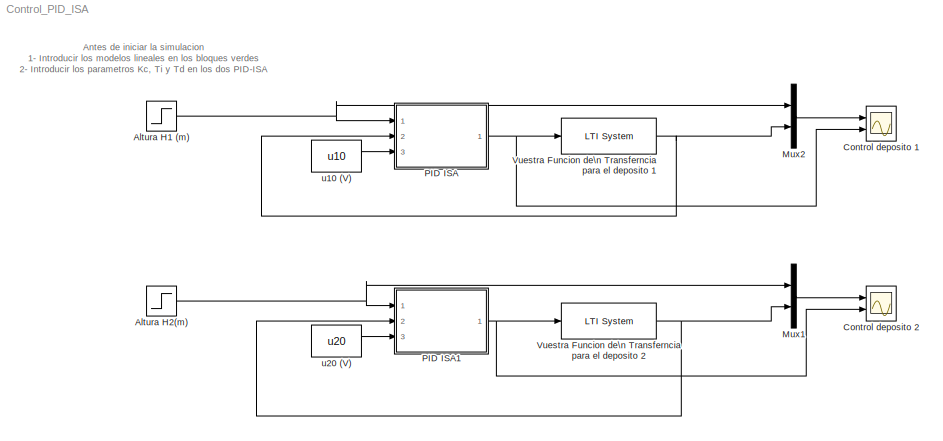
MODEL Control_PID_ISA
KIND model
BLOCK [Step] Altura H1 (m)
  After = 5
  SID = 42
  SampleTime = 0.06
BLOCK [Step] Altura H2(m)
  After = 5
  SID = 43
  SampleTime = 0.06
BLOCK [Scope] Control deposito 1
  DataFormat = StructureWithTime
  Floating = off
  LimitDataPoints = off
  MaxDataPoints = 100000
  NumInputPorts = 2
  Ports = [2]
  SID = 2
  SampleTime = 0
  SaveName = ScopeData1
  TimeRange = 30
  YMax = 20~14
  YMin = -15~0
  ZoomMode = xonly
BLOCK [Scope] Control deposito 2
  DataFormat = StructureWithTime
  Floating = off
  LimitDataPoints = off
  MaxDataPoints = 100000
  NumInputPorts = 2
  Ports = [2]
  SID = 3
  SampleTime = 0
  SaveName = ScopeData2
  TimeRange = 30
  YMax = 20~14
  YMin = -15~0
  ZoomMode = xonly
BLOCK [Mux] Mux1
  DisplayOption = bar
  Inputs = 2
  Ports = [2, 1]
  SID = 4
BLOCK [Mux] Mux2
  DisplayOption = bar
  Inputs = 2
  Ports = [2, 1]
  SID = 5
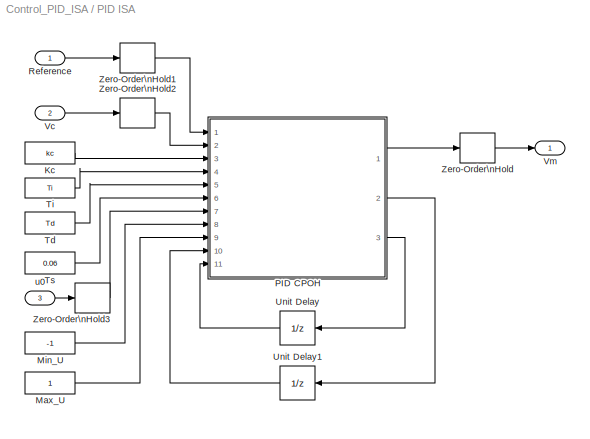
BLOCK [SubSystem] PID ISA
  FunctionWithSeparateData = off
  MaskCallbackString = ||
  MaskEnableString = on,on,on
  MaskHideContents = off
  MaskIconFrame = on
  MaskIconOpaque = on
  MaskIconRotate = none
  MaskIconUnits = autoscale
  MaskPortRotate = default
  MaskPromptString = kc|Ti|Td
  MaskStyleString = edit,edit,edit
  MaskToolTipString = on,on,on
  MaskTunableValueString = on,on,on
  MaskValueString = Kc|Ti|Td
  MaskVariables = kc=@1;Ti=@2;Td=@3;
  MaskVisibilityString = on,on,on
  MinAlgLoopOccurrences = off
  Opaque = off
  Ports = [3, 1]
  PropExecContextOutsideSubsystem = off
  RTWSystemCode = Auto
  RequestExecContextInheritance = off
  SID = 6
BLOCK [Constant] PID ISA/Kc
  SID = 10
  Value = kc
BLOCK [Constant] PID ISA/Max_U
  SID = 11
BLOCK [Constant] PID ISA/Min_U
  SID = 12
  Value = -1
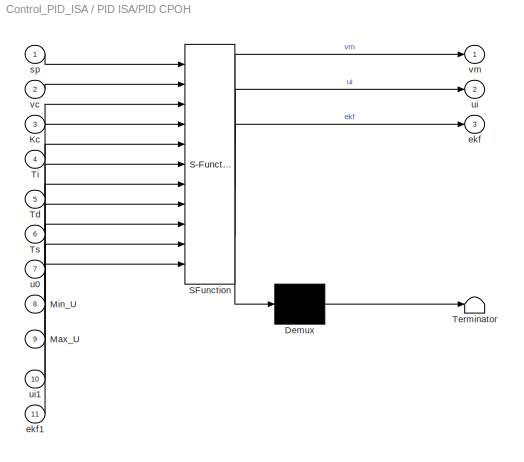
BLOCK [SubSystem] PID ISA/PID CPOH
  ErrorFcn = Stateflow.Translate.translate
  FunctionWithSeparateData = off
  MaskDescription = Embedded MATLAB block
  MaskDisplay = bgColor = Simulink.Root.ColorString2Rgb(get_param(gcbh, 'BackgroundColor')); image(imread('private/eml_membrane_16.png','png','BackgroundColor',bgColor(1:3)),'center'); disp([10 10 'fcn']);
  MaskHideContents = off
  MaskIconFrame = on
  MaskIconOpaque = off
  MaskIconRotate = none
  MaskIconUnits = normalized
  MaskPortRotate = default
  MaskSelfModifiable = on
  MaskType = Stateflow
  MinAlgLoopOccurrences = off
  Opaque = off
  PermitHierarchicalResolution = ExplicitOnly
  Ports = [11, 3]
  PropExecContextOutsideSubsystem = off
  RTWSystemCode = Auto
  RequestExecContextInheritance = off
  SFBlockType = MATLAB Function
  SID = 13
  TreatAsAtomicUnit = on
BLOCK [Demux] PID ISA/PID CPOH/ Demux 
  Outputs = 1
  Ports = [1, 1]
  SID = 13::19
BLOCK [S-Function] PID ISA/PID CPOH/ SFunction 
  EnableBusSupport = off
  FunctionName = sf_sfun
  PortCounts = [11 4]
  Ports = [11, 4]
  SID = 13::18
  Tag = Stateflow S-Function Control_PID_ISA 2
BLOCK [Terminator] PID ISA/PID CPOH/ Terminator 
  SID = 13::21
BLOCK [Inport] PID ISA/PID CPOH/Kc
  IconDisplay = Port number
  Port = 3
  SID = 13::3
BLOCK [Inport] PID ISA/PID CPOH/Max_U
  IconDisplay = Port number
  Port = 9
  SID = 13::9
BLOCK [Inport] PID ISA/PID CPOH/Min_U
  IconDisplay = Port number
  Port = 8
  SID = 13::8
BLOCK [Inport] PID ISA/PID CPOH/Td
  IconDisplay = Port number
  Port = 5
  SID = 13::5
BLOCK [Inport] PID ISA/PID CPOH/Ti
  IconDisplay = Port number
  Port = 4
  SID = 13::4
BLOCK [Inport] PID ISA/PID CPOH/Ts
  IconDisplay = Port number
  Port = 6
  SID = 13::6
BLOCK [Outport] PID ISA/PID CPOH/ekf
  IconDisplay = Port number
  Port = 3
  SID = 13::17
BLOCK [Inport] PID ISA/PID CPOH/ekf1
  IconDisplay = Port number
  Port = 11
  SID = 13::11
BLOCK [Inport] PID ISA/PID CPOH/sp
  IconDisplay = Port number
  SID = 13::1
BLOCK [Inport] PID ISA/PID CPOH/u0
  IconDisplay = Port number
  Port = 7
  SID = 13::7
BLOCK [Outport] PID ISA/PID CPOH/ui
  IconDisplay = Port number
  Port = 2
  SID = 13::16
BLOCK [Inport] PID ISA/PID CPOH/ui1
  IconDisplay = Port number
  Port = 10
  SID = 13::10
BLOCK [Inport] PID ISA/PID CPOH/vc
  IconDisplay = Port number
  Port = 2
  SID = 13::2
BLOCK [Outport] PID ISA/PID CPOH/vm
  IconDisplay = Port number
  SID = 13::15
BLOCK [Inport] PID ISA/Reference
  IconDisplay = Port number
  SID = 7
BLOCK [Constant] PID ISA/Td
  SID = 14
  Value = Td
BLOCK [Constant] PID ISA/Ti
  SID = 15
  Value = Ti
BLOCK [Constant] PID ISA/Ts
  SID = 16
  Value = 0.06
BLOCK [UnitDelay] PID ISA/Unit Delay
  SID = 17
  SampleTime = 0.04
BLOCK [UnitDelay] PID ISA/Unit Delay1
  SID = 18
  SampleTime = 0.04
BLOCK [Inport] PID ISA/Vc
  IconDisplay = Port number
  Port = 2
  SID = 8
BLOCK [Outport] PID ISA/Vm
  IconDisplay = Port number
  SID = 23
BLOCK [ZeroOrderHold] PID ISA/Zero-Order\nHold
  SID = 19
  SampleTime = 0.04
BLOCK [ZeroOrderHold] PID ISA/Zero-Order\nHold1
  SID = 20
  SampleTime = 0.04
BLOCK [ZeroOrderHold] PID ISA/Zero-Order\nHold2
  SID = 21
  SampleTime = 0.04
BLOCK [ZeroOrderHold] PID ISA/Zero-Order\nHold3
  SID = 22
  SampleTime = 0.04
BLOCK [Inport] PID ISA/u0
  IconDisplay = Port number
  Port = 3
  SID = 9
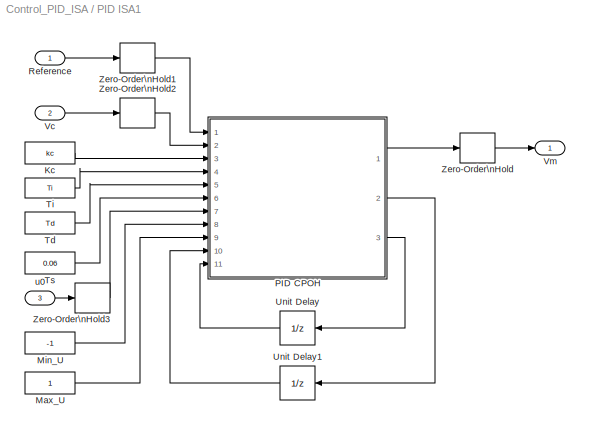
BLOCK [SubSystem] PID ISA1
  FunctionWithSeparateData = off
  MaskCallbackString = ||
  MaskEnableString = on,on,on
  MaskHideContents = off
  MaskIconFrame = on
  MaskIconOpaque = on
  MaskIconRotate = none
  MaskIconUnits = autoscale
  MaskPortRotate = default
  MaskPromptString = kc|Ti|Td
  MaskStyleString = edit,edit,edit
  MaskToolTipString = on,on,on
  MaskTunableValueString = on,on,on
  MaskValueString = Kc|Ti|Td
  MaskVariables = kc=@1;Ti=@2;Td=@3;
  MaskVisibilityString = on,on,on
  MinAlgLoopOccurrences = off
  Opaque = off
  Ports = [3, 1]
  PropExecContextOutsideSubsystem = off
  RTWSystemCode = Auto
  RequestExecContextInheritance = off
  SID = 24
BLOCK [Constant] PID ISA1/Kc
  SID = 28
  Value = kc
BLOCK [Constant] PID ISA1/Max_U
  SID = 29
BLOCK [Constant] PID ISA1/Min_U
  SID = 30
  Value = -1
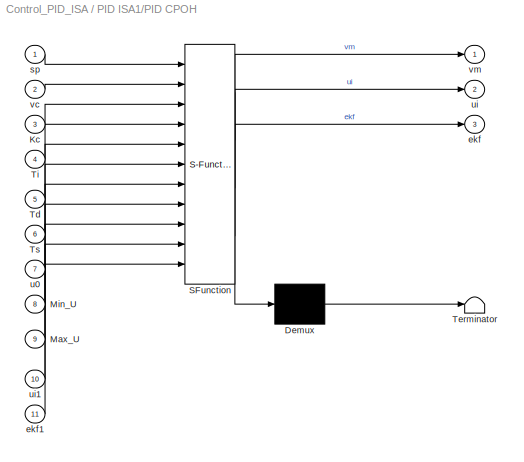
BLOCK [SubSystem] PID ISA1/PID CPOH
  ErrorFcn = Stateflow.Translate.translate
  FunctionWithSeparateData = off
  MaskDescription = Embedded MATLAB block
  MaskDisplay = bgColor = Simulink.Root.ColorString2Rgb(get_param(gcbh, 'BackgroundColor')); image(imread('private/eml_membrane_16.png','png','BackgroundColor',bgColor(1:3)),'center'); disp([10 10 'fcn']);
  MaskHideContents = off
  MaskIconFrame = on
  MaskIconOpaque = off
  MaskIconRotate = none
  MaskIconUnits = normalized
  MaskPortRotate = default
  MaskSelfModifiable = on
  MaskType = Stateflow
  MinAlgLoopOccurrences = off
  Opaque = off
  PermitHierarchicalResolution = ExplicitOnly
  Ports = [11, 3]
  PropExecContextOutsideSubsystem = off
  RTWSystemCode = Auto
  RequestExecContextInheritance = off
  SFBlockType = MATLAB Function
  SID = 31
  TreatAsAtomicUnit = on
BLOCK [Demux] PID ISA1/PID CPOH/ Demux 
  Outputs = 1
  Ports = [1, 1]
  SID = 31::19
BLOCK [S-Function] PID ISA1/PID CPOH/ SFunction 
  EnableBusSupport = off
  FunctionName = sf_sfun
  PortCounts = [11 4]
  Ports = [11, 4]
  SID = 31::18
  Tag = Stateflow S-Function Control_PID_ISA 1
BLOCK [Terminator] PID ISA1/PID CPOH/ Terminator 
  SID = 31::21
BLOCK [Inport] PID ISA1/PID CPOH/Kc
  IconDisplay = Port number
  Port = 3
  SID = 31::3
BLOCK [Inport] PID ISA1/PID CPOH/Max_U
  IconDisplay = Port number
  Port = 9
  SID = 31::9
BLOCK [Inport] PID ISA1/PID CPOH/Min_U
  IconDisplay = Port number
  Port = 8
  SID = 31::8
BLOCK [Inport] PID ISA1/PID CPOH/Td
  IconDisplay = Port number
  Port = 5
  SID = 31::5
BLOCK [Inport] PID ISA1/PID CPOH/Ti
  IconDisplay = Port number
  Port = 4
  SID = 31::4
BLOCK [Inport] PID ISA1/PID CPOH/Ts
  IconDisplay = Port number
  Port = 6
  SID = 31::6
BLOCK [Outport] PID ISA1/PID CPOH/ekf
  IconDisplay = Port number
  Port = 3
  SID = 31::17
BLOCK [Inport] PID ISA1/PID CPOH/ekf1
  IconDisplay = Port number
  Port = 11
  SID = 31::11
BLOCK [Inport] PID ISA1/PID CPOH/sp
  IconDisplay = Port number
  SID = 31::1
BLOCK [Inport] PID ISA1/PID CPOH/u0
  IconDisplay = Port number
  Port = 7
  SID = 31::7
BLOCK [Outport] PID ISA1/PID CPOH/ui
  IconDisplay = Port number
  Port = 2
  SID = 31::16
BLOCK [Inport] PID ISA1/PID CPOH/ui1
  IconDisplay = Port number
  Port = 10
  SID = 31::10
BLOCK [Inport] PID ISA1/PID CPOH/vc
  IconDisplay = Port number
  Port = 2
  SID = 31::2
BLOCK [Outport] PID ISA1/PID CPOH/vm
  IconDisplay = Port number
  SID = 31::15
BLOCK [Inport] PID ISA1/Reference
  IconDisplay = Port number
  SID = 25
BLOCK [Constant] PID ISA1/Td
  SID = 32
  Value = Td
BLOCK [Constant] PID ISA1/Ti
  SID = 33
  Value = Ti
BLOCK [Constant] PID ISA1/Ts
  SID = 34
  Value = 0.06
BLOCK [UnitDelay] PID ISA1/Unit Delay
  SID = 35
  SampleTime = 0.04
BLOCK [UnitDelay] PID ISA1/Unit Delay1
  SID = 36
  SampleTime = 0.04
BLOCK [Inport] PID ISA1/Vc
  IconDisplay = Port number
  Port = 2
  SID = 26
BLOCK [Outport] PID ISA1/Vm
  IconDisplay = Port number
  SID = 41
BLOCK [ZeroOrderHold] PID ISA1/Zero-Order\nHold
  SID = 37
  SampleTime = 0.04
BLOCK [ZeroOrderHold] PID ISA1/Zero-Order\nHold1
  SID = 38
  SampleTime = 0.04
BLOCK [ZeroOrderHold] PID ISA1/Zero-Order\nHold2
  SID = 39
  SampleTime = 0.04
BLOCK [ZeroOrderHold] PID ISA1/Zero-Order\nHold3
  SID = 40
  SampleTime = 0.04
BLOCK [Inport] PID ISA1/u0
  IconDisplay = Port number
  Port = 3
  SID = 27
BLOCK [Reference] Vuestra Funcion de\n Transferncia para el deposito 1  REF=cstblocks/LTI System
  IC = []
  Ports = [1, 1]
  SID = 44
  SourceBlock = cstblocks/LTI System
  SourceType = LTI Block
  sys = Gx
BLOCK [Reference] Vuestra Funcion de\n Transferncia para el deposito 2  REF=cstblocks/LTI System
  IC = []
  Ports = [1, 1]
  SID = 45
  SourceBlock = cstblocks/LTI System
  SourceType = LTI Block
  sys = Gy
BLOCK [Constant] u10 (V)   
  SID = 47
  Value = u10
BLOCK [Constant] u20 (V)
  SID = 1
  Value = u20
ANNOTATION (root): Antes de iniciar la simulacion\n1- Introducir los modelos lineales en los bloques verdes\n2- Introducir los parametros Kc, Ti y Td en los dos PID-ISA
NET Altura H1 (m):1 -> Mux2:1, PID ISA:1
NET Altura H2(m):1 -> Mux1:1, PID ISA1:1
LINE Mux1:1 -> Control deposito 2:1
LINE Mux2:1 -> Control deposito 1:1
LINE PID ISA/Kc:1 -> PID ISA/PID CPOH:3
LINE PID ISA/Max_U:1 -> PID ISA/PID CPOH:9
LINE PID ISA/Min_U:1 -> PID ISA/PID CPOH:8
LINE PID ISA/PID CPOH/ Demux :1 -> PID ISA/PID CPOH/ Terminator :1
LINE PID ISA/PID CPOH/ SFunction :1 -> PID ISA/PID CPOH/ Demux :1
LINE PID ISA/PID CPOH/ SFunction :2 -> PID ISA/PID CPOH/vm:1
LINE PID ISA/PID CPOH/ SFunction :3 -> PID ISA/PID CPOH/ui:1
LINE PID ISA/PID CPOH/ SFunction :4 -> PID ISA/PID CPOH/ekf:1
LINE PID ISA/PID CPOH/Kc:1 -> PID ISA/PID CPOH/ SFunction :3
LINE PID ISA/PID CPOH/Max_U:1 -> PID ISA/PID CPOH/ SFunction :9
LINE PID ISA/PID CPOH/Min_U:1 -> PID ISA/PID CPOH/ SFunction :8
LINE PID ISA/PID CPOH/Td:1 -> PID ISA/PID CPOH/ SFunction :5
LINE PID ISA/PID CPOH/Ti:1 -> PID ISA/PID CPOH/ SFunction :4
LINE PID ISA/PID CPOH/Ts:1 -> PID ISA/PID CPOH/ SFunction :6
LINE PID ISA/PID CPOH/ekf1:1 -> PID ISA/PID CPOH/ SFunction :11
LINE PID ISA/PID CPOH/sp:1 -> PID ISA/PID CPOH/ SFunction :1
LINE PID ISA/PID CPOH/u0:1 -> PID ISA/PID CPOH/ SFunction :7
LINE PID ISA/PID CPOH/ui1:1 -> PID ISA/PID CPOH/ SFunction :10
LINE PID ISA/PID CPOH/vc:1 -> PID ISA/PID CPOH/ SFunction :2
LINE PID ISA/PID CPOH:1 -> PID ISA/Zero-Order\nHold:1
LINE PID ISA/PID CPOH:2 -> PID ISA/Unit Delay1:1
LINE PID ISA/PID CPOH:3 -> PID ISA/Unit Delay:1
LINE PID ISA/Reference:1 -> PID ISA/Zero-Order\nHold1:1
LINE PID ISA/Td:1 -> PID ISA/PID CPOH:5
LINE PID ISA/Ti:1 -> PID ISA/PID CPOH:4
LINE PID ISA/Ts:1 -> PID ISA/PID CPOH:6
LINE PID ISA/Unit Delay1:1 -> PID ISA/PID CPOH:10
LINE PID ISA/Unit Delay:1 -> PID ISA/PID CPOH:11
LINE PID ISA/Vc:1 -> PID ISA/Zero-Order\nHold2:1
LINE PID ISA/Zero-Order\nHold1:1 -> PID ISA/PID CPOH:1
LINE PID ISA/Zero-Order\nHold2:1 -> PID ISA/PID CPOH:2
LINE PID ISA/Zero-Order\nHold3:1 -> PID ISA/PID CPOH:7
LINE PID ISA/Zero-Order\nHold:1 -> PID ISA/Vm:1
LINE PID ISA/u0:1 -> PID ISA/Zero-Order\nHold3:1
LINE PID ISA1/Kc:1 -> PID ISA1/PID CPOH:3
LINE PID ISA1/Max_U:1 -> PID ISA1/PID CPOH:9
LINE PID ISA1/Min_U:1 -> PID ISA1/PID CPOH:8
LINE PID ISA1/PID CPOH/ Demux :1 -> PID ISA1/PID CPOH/ Terminator :1
LINE PID ISA1/PID CPOH/ SFunction :1 -> PID ISA1/PID CPOH/ Demux :1
LINE PID ISA1/PID CPOH/ SFunction :2 -> PID ISA1/PID CPOH/vm:1
LINE PID ISA1/PID CPOH/ SFunction :3 -> PID ISA1/PID CPOH/ui:1
LINE PID ISA1/PID CPOH/ SFunction :4 -> PID ISA1/PID CPOH/ekf:1
LINE PID ISA1/PID CPOH/Kc:1 -> PID ISA1/PID CPOH/ SFunction :3
LINE PID ISA1/PID CPOH/Max_U:1 -> PID ISA1/PID CPOH/ SFunction :9
LINE PID ISA1/PID CPOH/Min_U:1 -> PID ISA1/PID CPOH/ SFunction :8
LINE PID ISA1/PID CPOH/Td:1 -> PID ISA1/PID CPOH/ SFunction :5
LINE PID ISA1/PID CPOH/Ti:1 -> PID ISA1/PID CPOH/ SFunction :4
LINE PID ISA1/PID CPOH/Ts:1 -> PID ISA1/PID CPOH/ SFunction :6
LINE PID ISA1/PID CPOH/ekf1:1 -> PID ISA1/PID CPOH/ SFunction :11
LINE PID ISA1/PID CPOH/sp:1 -> PID ISA1/PID CPOH/ SFunction :1
LINE PID ISA1/PID CPOH/u0:1 -> PID ISA1/PID CPOH/ SFunction :7
LINE PID ISA1/PID CPOH/ui1:1 -> PID ISA1/PID CPOH/ SFunction :10
LINE PID ISA1/PID CPOH/vc:1 -> PID ISA1/PID CPOH/ SFunction :2
LINE PID ISA1/PID CPOH:1 -> PID ISA1/Zero-Order\nHold:1
LINE PID ISA1/PID CPOH:2 -> PID ISA1/Unit Delay1:1
LINE PID ISA1/PID CPOH:3 -> PID ISA1/Unit Delay:1
LINE PID ISA1/Reference:1 -> PID ISA1/Zero-Order\nHold1:1
LINE PID ISA1/Td:1 -> PID ISA1/PID CPOH:5
LINE PID ISA1/Ti:1 -> PID ISA1/PID CPOH:4
LINE PID ISA1/Ts:1 -> PID ISA1/PID CPOH:6
LINE PID ISA1/Unit Delay1:1 -> PID ISA1/PID CPOH:10
LINE PID ISA1/Unit Delay:1 -> PID ISA1/PID CPOH:11
LINE PID ISA1/Vc:1 -> PID ISA1/Zero-Order\nHold2:1
LINE PID ISA1/Zero-Order\nHold1:1 -> PID ISA1/PID CPOH:1
LINE PID ISA1/Zero-Order\nHold2:1 -> PID ISA1/PID CPOH:2
LINE PID ISA1/Zero-Order\nHold3:1 -> PID ISA1/PID CPOH:7
LINE PID ISA1/Zero-Order\nHold:1 -> PID ISA1/Vm:1
LINE PID ISA1/u0:1 -> PID ISA1/Zero-Order\nHold3:1
NET PID ISA1:1 -> Control deposito 2:2, Vuestra Funcion de\n Transferncia para el deposito 2:1
NET PID ISA:1 -> Control deposito 1:2, Vuestra Funcion de\n Transferncia para el deposito 1:1
NET Vuestra Funcion de\n Transferncia para el deposito 1:1 -> Mux2:2, PID ISA:2
NET Vuestra Funcion de\n Transferncia para el deposito 2:1 -> Mux1:2, PID ISA1:2
LINE u10 (V)   :1 -> PID ISA:3
LINE u20 (V):1 -> PID ISA1:3
note: NET lines group one-source signal fan-out (src -> all destinations, sorted); 1:1 wires keep LINE
CHART PID ISA1/PID CPOH states=1 transitions=1
  STATE_LABEL 'eML_blk_kernel()'
CHART PID ISA/PID CPOH states=1 transitions=1
  STATE_LABEL 'eML_blk_kernel()'
